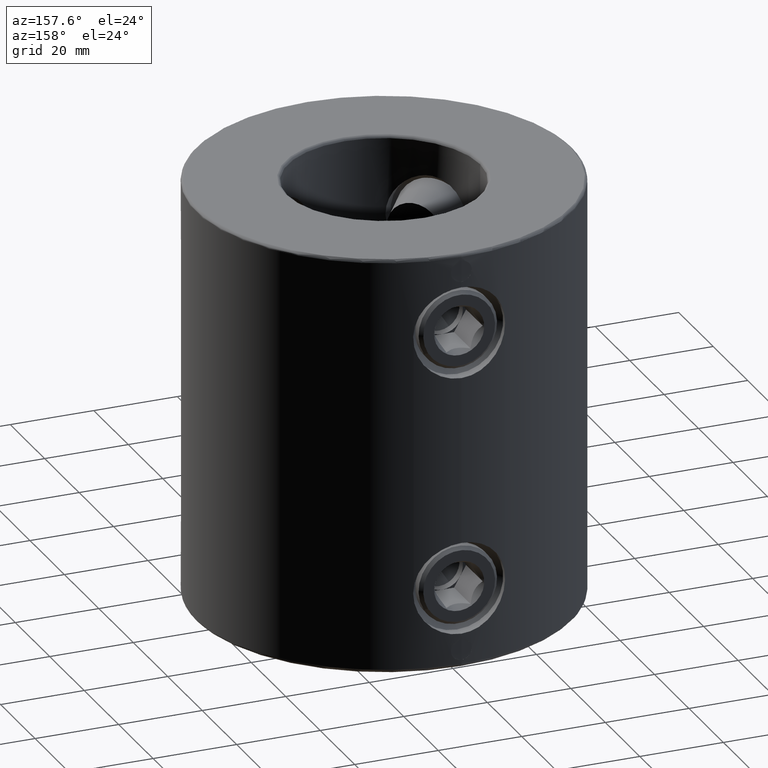
[diagram: clean part render]
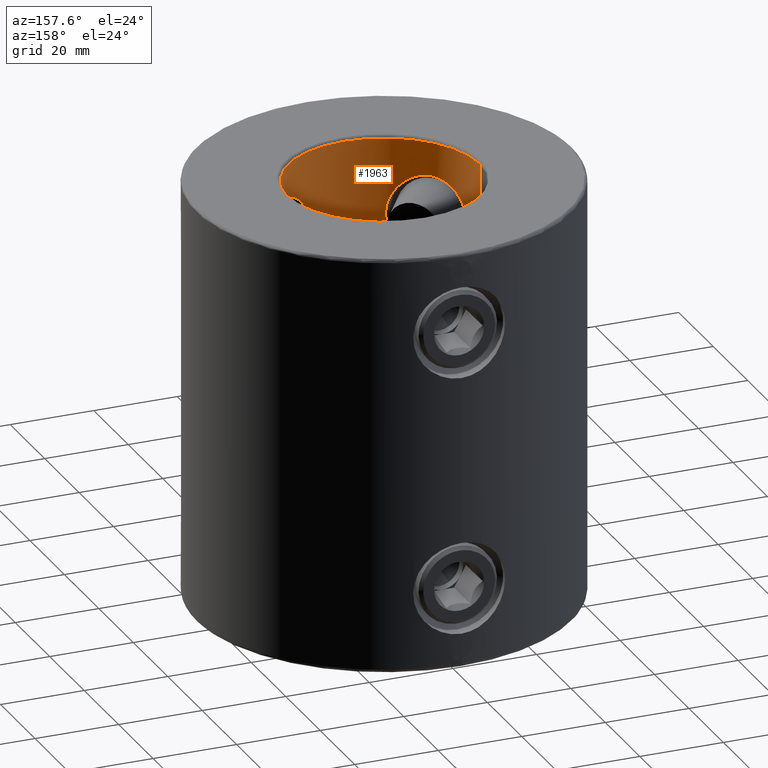
[diagram: same view with one face highlighted and labeled with its STEP entity id]
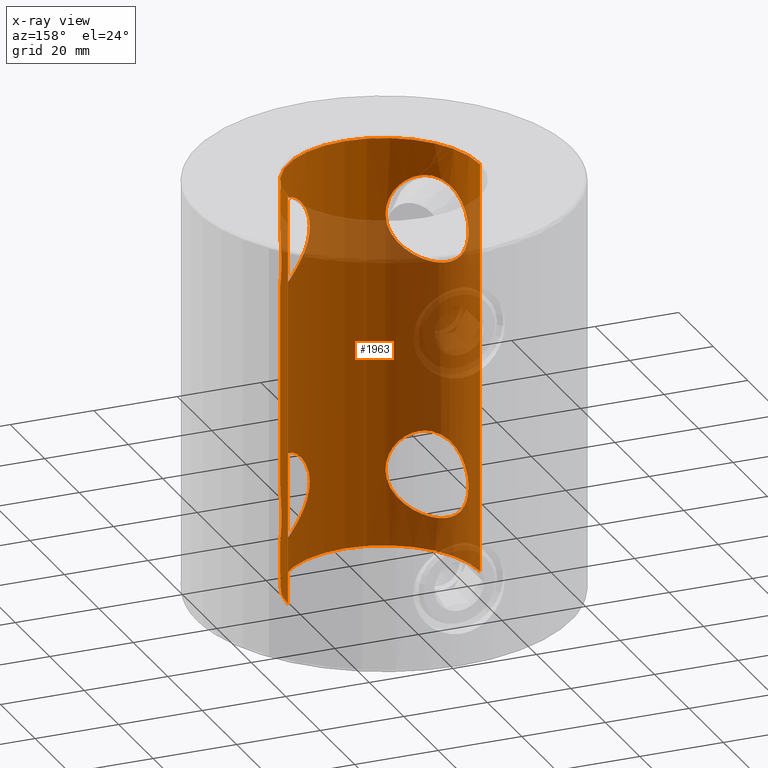
[diagram: x-ray of the same camera — body ghosted, the highlighted face saturated]
A machine part, auxiliary view. The second image highlights one B-rep face of the part: STEP entity #1963.
The next image is the same camera in x-ray: the body ghosted, the highlighted face saturated — about 84% of this face is hidden behind the body in this view.
In plain terms, the highlighted cylindrical surface (partial cylindrical patch) has radius 23 mm, axis along (0, -0, 1).
Its self-contained STEP definition (entity closure, byte-faithful):
#1231=EDGE_CURVE('NONE',#2925,#2093,#3356,.T.);
#1341=VERTEX_POINT('NONE',#3476);
#1373=EDGE_CURVE('NONE',#1475,#3099,#3513,.T.);
#1441=EDGE_CURVE('NONE',#3099,#1475,#3589,.T.);
#1475=VERTEX_POINT('NONE',#3625);
#1479=EDGE_CURVE('NONE',#3117,#2107,#3629,.T.);
#1555=EDGE_CURVE('NONE',#1725,#3155,#3712,.T.);
#1725=VERTEX_POINT('NONE',#3900);
#1803=EDGE_CURVE('NONE',#3155,#1725,#3984,.T.);
#1963=ADVANCED_FACE('NONE',(#4171,#4172,#4173,#4174,#4175),#4176,.F.);
#1967=EDGE_CURVE('NONE',#2091,#2925,#4180,.T.);
#2017=EDGE_CURVE('NONE',#2289,#2347,#4235,.T.);
#2047=EDGE_CURVE('NONE',#2327,#2865,#4269,.T.);
#2091=VERTEX_POINT('NONE',#4319);
#2093=VERTEX_POINT('NONE',#4321);
#2107=VERTEX_POINT('NONE',#4337);
#2289=VERTEX_POINT('NONE',#4538);
#2327=VERTEX_POINT('NONE',#4577);
#2347=VERTEX_POINT('NONE',#4600);
#2739=EDGE_CURVE('NONE',#2093,#1341,#5049,.T.);
#2789=EDGE_CURVE('NONE',#2107,#2091,#5105,.T.);
#2865=VERTEX_POINT('NONE',#5188);
#2905=EDGE_CURVE('NONE',#2347,#2289,#5235,.T.);
#2925=VERTEX_POINT('NONE',#5255);
#3099=VERTEX_POINT('NONE',#5456);
#3117=VERTEX_POINT('NONE',#5477);
#3155=VERTEX_POINT('NONE',#5517);
#3161=EDGE_CURVE('NONE',#3117,#1341,#5523,.T.);
#3163=EDGE_CURVE('NONE',#2865,#2327,#5525,.T.);
#3356=CIRCLE('',#5828,23.0);
#3476=CARTESIAN_POINT('',(-23.0,2.81659461379147E-015,-0.670000000000007));
#3513=B_SPLINE_CURVE_WITH_KNOTS('',3,(#6089,#6090,#6091,#6092,#6093,#6094,#6095,#6096,#6097,#6098,#6099,#6100,#6101,#6102,#6103,#6104,#6105,#6106,#6107,#6108,#6109,#6110,#6111,#6112,#6113,#6114,#6115,#6116,#6117,#6118,#6119,#6120,#6121,#6122,#6123,#6124,#6125,#6126,#6127,#6128,#6129,#6130,#6131,#6132,#6133,#6134,#6135,#6136,#6137,#6138),.UNSPECIFIED.,.F.,.F.,(4,2,2,2,2,2,2,2,2,2,2,2,2,2,2,2,2,2,2,2,2,2,2,2,4),(0.0328872435596327,0.0339137847211093,0.0349403258825859,0.036993408205539,0.0380199493670156,0.0390464905284922,0.0400730316899688,0.0410995728514454,0.0431526551743985,0.0452057374973516,0.0472588198203047,0.0482853609817813,0.0493119021432578,0.0503384433047344,0.0513649844662109,0.053418066789164,0.0544446079506405,0.0554711491121171,0.0575242314350701,0.0595773137580231,0.0606038549194996,0.0616303960809761,0.0636834784039291,0.0647100195654056,0.0657365607268821),.UNSPECIFIED.);
#3589=B_SPLINE_CURVE_WITH_KNOTS('',3,(#6301,#6302,#6303,#6304,#6305,#6306,#6307,#6308,#6309,#6310,#6311,#6312,#6313,#6314,#6315,#6316,#6317,#6318,#6319,#6320,#6321,#6322,#6323,#6324,#6325,#6326,#6327,#6328,#6329,#6330,#6331,#6332,#6333,#6334,#6335,#6336,#6337,#6338,#6339,#6340,#6341,#6342,#6343,#6344,#6345,#6346,#6347,#6348),.UNSPECIFIED.,.F.,.F.,(4,2,2,2,2,2,2,2,2,2,2,2,2,2,2,2,2,2,2,2,2,2,2,4),(0.0,0.00205545272247707,0.00308317908371561,0.00411090544495416,0.00616635816743126,0.00719408452866981,0.00822181088990835,0.0092495372511469,0.0102772636123854,0.0123327163348625,0.013360442696101,0.0143881690573396,0.0164436217798166,0.0174713481410551,0.0184990745022936,0.0195268008635321,0.0205545272247706,0.0226099799472477,0.0246654326697247,0.0267208853922017,0.0277486117534402,0.0287763381146787,0.0308317908371557,0.0328872435596327),.UNSPECIFIED.);
#3625=CARTESIAN_POINT('',(17.6190221917365,-14.7841150227905,-91.3250000000001));
#3629=CIRCLE('',#6466,23.0);
#3712=B_SPLINE_CURVE_WITH_KNOTS('',3,(#6661,#6662,#6663,#6664,#6665,#6666,#6667,#6668,#6669,#6670,#6671,#6672,#6673,#6674,#6675,#6676,#6677,#6678,#6679,#6680,#6681,#6682,#6683,#6684,#6685,#6686,#6687,#6688,#6689,#6690,#6691,#6692,#6693,#6694,#6695,#6696,#6697,#6698,#6699,#6700,#6701,#6702,#6703,#6704,#6705,#6706,#6707,#6708),.UNSPECIFIED.,.F.,.F.,(4,2,2,2,2,2,2,2,2,2,2,2,2,2,2,2,2,2,2,2,2,2,2,4),(0.0,0.00205545272247705,0.00308317908371557,0.00411090544495409,0.00616635816743114,0.00719408452866966,0.00822181088990818,0.00924953725114671,0.0102772636123852,0.0123327163348623,0.0133604426961008,0.0143881690573393,0.0164436217798164,0.0174713481410549,0.0184990745022934,0.019526800863532,0.0205545272247705,0.0226099799472475,0.0246654326697246,0.0267208853922016,0.0277486117534401,0.0287763381146787,0.0308317908371557,0.0328872435596327),.UNSPECIFIED.);
#3900=CARTESIAN_POINT('',(17.6190221917364,-14.7841150227905,-29.425));
#3984=B_SPLINE_CURVE_WITH_KNOTS('',3,(#7273,#7274,#7275,#7276,#7277,#7278,#7279,#7280,#7281,#7282,#7283,#7284,#7285,#7286,#7287,#7288,#7289,#7290,#7291,#7292,#7293,#7294,#7295,#7296,#7297,#7298,#7299,#7300,#7301,#7302,#7303,#7304,#7305,#7306,#7307,#7308,#7309,#7310,#7311,#7312,#7313,#7314,#7315,#7316,#7317,#7318,#7319,#7320,#7321),.UNSPECIFIED.,.F.,.F.,(4,2,2,2,2,2,2,2,2,2,2,2,1,2,2,2,2,2,2,2,2,2,2,2,4),(0.0328872435596327,0.0339137847211093,0.0349403258825858,0.0369934082055389,0.0380199493670155,0.039046490528492,0.0400730316899686,0.0410995728514451,0.0431526551743982,0.0452057374973513,0.0472588198203044,0.0482853609817809,0.0493119021432575,0.050338443304734,0.0513649844662106,0.0534180667891637,0.0544446079506402,0.0554711491121167,0.0575242314350698,0.0595773137580229,0.0606038549194995,0.061630396080976,0.0636834784039291,0.0647100195654056,0.0657365607268822),.UNSPECIFIED.);
#4171=FACE_OUTER_BOUND('',#7688,.T.);
#4172=FACE_BOUND('',#7689,.T.);
#4173=FACE_BOUND('',#7690,.T.);
#4174=FACE_BOUND('',#7691,.T.);
#4175=FACE_BOUND('',#7692,.T.);
#4176=CYLINDRICAL_SURFACE('',#7693,23.0);
#4180=LINE('',#7698,#7699);
#4235=B_SPLINE_CURVE_WITH_KNOTS('',3,(#7875,#7876,#7877,#7878,#7879,#7880,#7881,#7882,#7883,#7884,#7885,#7886,#7887,#7888,#7889,#7890,#7891,#7892,#7893,#7894,#7895,#7896,#7897,#7898,#7899,#7900,#7901,#7902,#7903,#7904,#7905,#7906,#7907,#7908,#7909,#7910,#7911,#7912,#7913,#7914,#7915,#7916,#7917,#7918,#7919,#7920,#7921,#7922,#7923,#7924),.UNSPECIFIED.,.F.,.F.,(4,2,2,2,2,2,2,2,2,2,2,2,2,2,2,2,2,2,2,2,2,2,2,2,4),(0.0328872435596327,0.0339137847211093,0.0349403258825858,0.0369934082055389,0.0380199493670155,0.039046490528492,0.0400730316899685,0.0410995728514451,0.0431526551743982,0.0452057374973513,0.0472588198203044,0.0482853609817809,0.0493119021432574,0.050338443304734,0.0513649844662105,0.0534180667891636,0.0544446079506402,0.0554711491121167,0.0575242314350698,0.0595773137580229,0.0606038549194995,0.061630396080976,0.0636834784039291,0.0647100195654056,0.0657365607268822),.UNSPECIFIED.);
#4269=B_SPLINE_CURVE_WITH_KNOTS('',3,(#7967,#7968,#7969,#7970,#7971,#7972,#7973,#7974,#7975,#7976,#7977,#7978,#7979,#7980,#7981,#7982,#7983,#7984,#7985,#7986,#7987,#7988,#7989,#7990,#7991,#7992,#7993,#7994,#7995,#7996,#7997,#7998,#7999,#8000,#8001,#8002,#8003,#8004,#8005,#8006,#8007,#8008,#8009,#8010,#8011,#8012,#8013,#8014,#8015),.UNSPECIFIED.,.F.,.F.,(4,2,2,2,2,2,2,2,2,2,2,2,1,2,2,2,2,2,2,2,2,2,2,2,4),(0.0328872435596327,0.0339137847211093,0.0349403258825858,0.036993408205539,0.0380199493670155,0.0390464905284921,0.0400730316899686,0.0410995728514452,0.0431526551743983,0.0452057374973514,0.0472588198203045,0.048285360981781,0.0493119021432576,0.0503384433047341,0.0513649844662106,0.0534180667891637,0.0544446079506402,0.0554711491121168,0.0575242314350699,0.0595773137580229,0.0606038549194994,0.061630396080976,0.0636834784039291,0.0647100195654056,0.0657365607268822),.UNSPECIFIED.);
#4319=CARTESIAN_POINT('',(23.0,0.0,-99.3300000000002));
#4321=CARTESIAN_POINT('',(0.0,-23.0,-0.670000000000007));
#4337=CARTESIAN_POINT('',(2.33929385194388E-015,-23.0,-99.33));
#4538=CARTESIAN_POINT('',(-17.6190221917364,-14.7841150227905,-8.675));
#4577=CARTESIAN_POINT('',(-17.6190221917364,-14.7841150227905,-91.3249999999999));
#4600=CARTESIAN_POINT('',(-17.6190221917364,-14.7841150227905,-29.425));
#5049=CIRCLE('',#9639,23.0);
#5105=CIRCLE('',#9709,23.0);
#5188=CARTESIAN_POINT('',(-17.6190221917362,-14.7841150227905,-70.5749999999999));
#5235=B_SPLINE_CURVE_WITH_KNOTS('',3,(#9948,#9949,#9950,#9951,#9952,#9953,#9954,#9955,#9956,#9957,#9958,#9959,#9960,#9961,#9962,#9963,#9964,#9965,#9966,#9967,#9968,#9969,#9970,#9971,#9972,#9973,#9974,#9975,#9976,#9977,#9978,#9979,#9980,#9981,#9982,#9983,#9984,#9985,#9986,#9987,#9988,#9989,#9990,#9991,#9992,#9993,#9994,#9995),.UNSPECIFIED.,.F.,.F.,(4,2,2,2,2,2,2,2,2,2,2,2,2,2,2,2,2,2,2,2,2,2,2,4),(0.0,0.00205545272247706,0.0030831790837156,0.00411090544495412,0.00616635816743118,0.0071940845286697,0.00822181088990822,0.00924953725114675,0.0102772636123853,0.0123327163348623,0.0133604426961008,0.0143881690573393,0.0164436217798164,0.0174713481410549,0.0184990745022934,0.0195268008635319,0.0205545272247704,0.0226099799472475,0.0246654326697245,0.0267208853922016,0.0277486117534401,0.0287763381146786,0.0308317908371557,0.0328872435596327),.UNSPECIFIED.);
#5255=CARTESIAN_POINT('',(23.0,0.0,-0.670000000000007));
#5456=CARTESIAN_POINT('',(17.6190221917366,-14.7841150227905,-70.5750000000001));
#5477=CARTESIAN_POINT('',(-23.0,2.81659461379147E-015,-99.3299999999998));
#5517=CARTESIAN_POINT('',(17.6190221917364,-14.7841150227905,-8.675));
#5523=LINE('',#10530,#10531);
#5525=B_SPLINE_CURVE_WITH_KNOTS('',3,(#10534,#10535,#10536,#10537,#10538,#10539,#10540,#10541,#10542,#10543,#10544,#10545,#10546,#10547,#10548,#10549,#10550,#10551,#10552,#10553,#10554,#10555,#10556,#10557,#10558,#10559,#10560,#10561,#10562,#10563,#10564,#10565,#10566,#10567,#10568,#10569,#10570,#10571,#10572,#10573,#10574,#10575,#10576,#10577,#10578,#10579,#10580,#10581),.UNSPECIFIED.,.F.,.F.,(4,2,2,2,2,2,2,2,2,2,2,2,2,2,2,2,2,2,2,2,2,2,2,4),(0.0,0.00205545272247706,0.00308317908371559,0.00411090544495412,0.00616635816743119,0.00719408452866971,0.00822181088990822,0.00924953725114675,0.0102772636123853,0.0123327163348623,0.0133604426961008,0.0143881690573393,0.0164436217798164,0.0174713481410549,0.0184990745022934,0.0195268008635319,0.0205545272247705,0.0226099799472475,0.0246654326697246,0.0267208853922016,0.0277486117534401,0.0287763381146786,0.0308317908371557,0.0328872435596327),.UNSPECIFIED.);
#5828=AXIS2_PLACEMENT_3D('',#10844,#10845,#10846);
#6089=CARTESIAN_POINT('',(17.6190221917365,-14.7841150227905,-91.3250000000001));
#6090=CARTESIAN_POINT('',(17.8390846596531,-14.5218547860557,-91.3250000000001));
#6091=CARTESIAN_POINT('',(18.0538235713508,-14.2540536357686,-91.3080980925852));
#6092=CARTESIAN_POINT('',(18.4724757033478,-13.7071598803711,-91.2394810227541));
#6093=CARTESIAN_POINT('',(18.6754690720395,-13.4290971956094,-91.187664264733));
#6094=CARTESIAN_POINT('',(19.254179859158,-12.5988786862363,-90.9841768458101));
#6095=CARTESIAN_POINT('',(19.6047664468973,-12.0441539210374,-90.78428489932));
#6096=CARTESIAN_POINT('',(20.0837312675096,-11.2136464253256,-90.3892578039674));
#6097=CARTESIAN_POINT('',(20.2354616299493,-10.9370471766201,-90.2413357405828));
#6098=CARTESIAN_POINT('',(20.51819160297,-10.3969573272459,-89.9200437105336));
#6099=CARTESIAN_POINT('',(20.6501022516113,-10.1319281925016,-89.7460002319745));
#6100=CARTESIAN_POINT('',(20.8969605463822,-9.61247792314528,-89.3716226701748));
#6101=CARTESIAN_POINT('',(21.0119040193746,-9.35805501681577,-89.1712882550399));
#6102=CARTESIAN_POINT('',(21.2263701499759,-8.86084163459504,-88.7439337406022));
#6103=CARTESIAN_POINT('',(21.3262420075459,-8.61707620788887,-88.5157973142441));
#6104=CARTESIAN_POINT('',(21.5998560713525,-7.91811971649589,-87.8029261667045));
#6105=CARTESIAN_POINT('',(21.749468442298,-7.49151099544941,-87.2878070119053));
#6106=CARTESIAN_POINT('',(21.998352202834,-6.72566835916889,-86.1752618563761));
#6107=CARTESIAN_POINT('',(22.0979199802771,-6.38465547807995,-85.5714893661763));
#6108=CARTESIAN_POINT('',(22.2499323662517,-5.83287259639121,-84.3254980523995));
#6109=CARTESIAN_POINT('',(22.3038553131051,-5.61791766027203,-83.679098383266));
#6110=CARTESIAN_POINT('',(22.3579184990639,-5.39714929899132,-82.6713943651014));
#6111=CARTESIAN_POINT('',(22.3714224054689,-5.3404997513703,-82.3268499812567));
#6112=CARTESIAN_POINT('',(22.3891509886799,-5.26568096682621,-81.6407053825209));
#6113=CARTESIAN_POINT('',(22.3934972362445,-5.24702597440465,-81.2980444185802));
#6114=CARTESIAN_POINT('',(22.3935948342042,-5.2466094239298,-80.6135301995425));
#6115=CARTESIAN_POINT('',(22.3893454999163,-5.26484876011015,-80.2716769664058));
#6116=CARTESIAN_POINT('',(22.371946667873,-5.3382981062603,-79.5887813369612));
#6117=CARTESIAN_POINT('',(22.3587056848252,-5.39388708235766,-79.2460837609756));
#6118=CARTESIAN_POINT('',(22.3046862000139,-5.6146170439608,-78.2309605111127));
#6119=CARTESIAN_POINT('',(22.2506161126144,-5.83030509946328,-77.5809923054868));
#6120=CARTESIAN_POINT('',(22.1363046339048,-6.24536715421224,-76.6426971731394));
#6121=CARTESIAN_POINT('',(22.092416639234,-6.39967679533796,-76.3350547852628));
#6122=CARTESIAN_POINT('',(21.9922924342843,-6.73571150890647,-75.736736339388));
#6123=CARTESIAN_POINT('',(21.9364763345434,-6.91603779877242,-75.4482780223723));
#6124=CARTESIAN_POINT('',(21.7497376554496,-7.49074116220969,-74.6131301389497));
#6125=CARTESIAN_POINT('',(21.5997836361724,-7.91849695217544,-74.0963419650958));
#6126=CARTESIAN_POINT('',(21.2327673849797,-8.85566690240854,-73.1412115315797));
#6127=CARTESIAN_POINT('',(21.0200320189834,-9.35348303535697,-72.7150701351328));
#6128=CARTESIAN_POINT('',(20.6505289484208,-10.1310415009214,-72.1546236750214));
#6129=CARTESIAN_POINT('',(20.5188051446191,-10.3957436075702,-71.9807307518872));
#6130=CARTESIAN_POINT('',(20.236198533769,-10.9356809856116,-71.6594248003636));
#6131=CARTESIAN_POINT('',(20.0843014682886,-11.2126190926908,-71.5112776935718));
#6132=CARTESIAN_POINT('',(19.6057042753217,-12.0426047604369,-71.116358553392));
#6133=CARTESIAN_POINT('',(19.255988968134,-12.5959484898592,-70.9169582373764));
#6134=CARTESIAN_POINT('',(18.6801611050324,-13.4225310007116,-70.713739695346));
#6135=CARTESIAN_POINT('',(18.4796508078274,-13.6975070536753,-70.662098372691));
#6136=CARTESIAN_POINT('',(18.0602017896469,-14.2459925867577,-70.5925567239606));
#6137=CARTESIAN_POINT('',(17.8423397159543,-14.5179755610149,-70.5750000000002));
#6138=CARTESIAN_POINT('',(17.6190221917366,-14.7841150227905,-70.5750000000001));
#6301=CARTESIAN_POINT('',(17.6190221917366,-14.7841150227905,-70.5750000000001));
#6302=CARTESIAN_POINT('',(17.1718714779068,-15.3170084924283,-70.5750000000001));
#6303=CARTESIAN_POINT('',(16.7092024820473,-15.8194396233161,-70.6442414099532));
#6304=CARTESIAN_POINT('',(15.9946784021898,-16.5312822311512,-70.8464896228193));
#6305=CARTESIAN_POINT('',(15.7530848395712,-16.7615680199012,-70.9304330413766));
#6306=CARTESIAN_POINT('',(15.26357905027,-17.2085153056463,-71.1319864698544));
#6307=CARTESIAN_POINT('',(15.0169244826743,-17.4239270552966,-71.2492571658993));
#6308=CARTESIAN_POINT('',(14.2852594753062,-18.0370835089743,-71.6429765411014));
#6309=CARTESIAN_POINT('',(13.803373875391,-18.4065838472822,-71.9628545033483));
#6310=CARTESIAN_POINT('',(13.0954180977094,-18.9101530840949,-72.5280851460334));
#6311=CARTESIAN_POINT('',(12.8615192919735,-19.0697284287569,-72.7314368139845));
#6312=CARTESIAN_POINT('',(12.4093132336859,-19.3670381295801,-73.1588950442558));
#6313=CARTESIAN_POINT('',(12.189814520171,-19.5056480575959,-73.383869158249));
#6314=CARTESIAN_POINT('',(11.7650705697851,-19.7647413003799,-73.856170290935));
#6315=CARTESIAN_POINT('',(11.5598225073824,-19.8852209489351,-74.1034967942166));
#6316=CARTESIAN_POINT('',(11.1651705534719,-20.1094623275223,-74.6211463171408));
#6317=CARTESIAN_POINT('',(10.9749120205523,-20.2136695435397,-74.8928359476194));
#6318=CARTESIAN_POINT('',(10.4376825340161,-20.4992513135539,-75.734394932594));
#6319=CARTESIAN_POINT('',(10.1265437263343,-20.6527224602635,-76.3253159959918));
#6320=CARTESIAN_POINT('',(9.73894895680558,-20.8368263282162,-77.2583612728141));
#6321=CARTESIAN_POINT('',(9.62301897882684,-20.8904262295121,-77.5772105741574));
#6322=CARTESIAN_POINT('',(9.42027018240747,-20.9826335813213,-78.2316342711573));
#6323=CARTESIAN_POINT('',(9.33365247953642,-21.0211466715962,-78.5676243097102));
#6324=CARTESIAN_POINT('',(9.12678251246179,-21.1121894875988,-79.5751045051514));
#6325=CARTESIAN_POINT('',(9.05623968562776,-21.1420084924023,-80.2546169487952));
#6326=CARTESIAN_POINT('',(9.05544001913648,-21.1423510079629,-81.2859762208465));
#6327=CARTESIAN_POINT('',(9.07301854283389,-21.134848172977,-81.6339942408253));
#6328=CARTESIAN_POINT('',(9.14349707531726,-21.1044529426152,-82.3225951016274));
#6329=CARTESIAN_POINT('',(9.1960072072687,-21.0817243498482,-82.6621175345331));
#6330=CARTESIAN_POINT('',(9.33360544969699,-21.0211669378393,-83.3320565780771));
#6331=CARTESIAN_POINT('',(9.41869610493031,-20.9833364844272,-83.6624724301172));
#6332=CARTESIAN_POINT('',(9.62017556364856,-20.8917320598438,-84.3144065329648));
#6333=CARTESIAN_POINT('',(9.73719037761134,-20.8376606478842,-84.6373786478276));
#6334=CARTESIAN_POINT('',(10.1296766860923,-20.6512363102101,-85.5822792536827));
#6335=CARTESIAN_POINT('',(10.4428713502515,-20.4965706519612,-86.1744002320949));
#6336=CARTESIAN_POINT('',(11.1557291751825,-20.1174719360739,-87.2897369123284));
#6337=CARTESIAN_POINT('',(11.5587660839252,-19.890794829752,-87.8152677297732));
#6338=CARTESIAN_POINT('',(12.4102191365712,-19.3709899934018,-88.7603576346885));
#6339=CARTESIAN_POINT('',(12.8614150324505,-19.0766889566949,-89.1853057426047));
#6340=CARTESIAN_POINT('',(13.5699390069841,-18.5725811317003,-89.7506614272928));
#6341=CARTESIAN_POINT('',(13.8118509261491,-18.3936328829376,-89.9270492022495));
#6342=CARTESIAN_POINT('',(14.2945638797358,-18.0210543566851,-90.2474391042581));
#6343=CARTESIAN_POINT('',(14.5366816806291,-17.8265239722025,-90.392565424055));
#6344=CARTESIAN_POINT('',(15.2638485760336,-17.2167131447818,-90.7831106470628));
#6345=CARTESIAN_POINT('',(15.7507671273474,-16.7743221494956,-90.9845365198744));
#6346=CARTESIAN_POINT('',(16.7164304111192,-15.812194755479,-91.2577384048854));
#6347=CARTESIAN_POINT('',(17.1783891068014,-15.3092410847778,-91.3250000000001));
#6348=CARTESIAN_POINT('',(17.6190221917365,-14.7841150227905,-91.3250000000001));
#6466=AXIS2_PLACEMENT_3D('',#11170,#11171,#11172);
#6661=CARTESIAN_POINT('',(17.6190221917364,-14.7841150227905,-29.425));
#6662=CARTESIAN_POINT('',(18.0661729055663,-14.2512215531527,-29.425));
#6663=CARTESIAN_POINT('',(18.4806293506253,-13.7083352886701,-29.355758590047));
#6664=CARTESIAN_POINT('',(19.0575816653794,-12.8810562634763,-29.1535103771808));
#6665=CARTESIAN_POINT('',(19.2424166136642,-12.6031443423726,-29.0695669586235));
#6666=CARTESIAN_POINT('',(19.5975719775841,-12.0434636642416,-28.8680135301457));
#6667=CARTESIAN_POINT('',(19.7668800225534,-11.7631504759827,-28.7507428341009));
#6668=CARTESIAN_POINT('',(20.2436689567525,-10.936127603313,-28.3570234588986));
#6669=CARTESIAN_POINT('',(20.5238771983896,-10.3973998680572,-28.0371454966517));
#6670=CARTESIAN_POINT('',(20.896860856318,-9.61275564910488,-27.4719148539667));
#6671=CARTESIAN_POINT('',(21.0133957915562,-9.35470032399471,-27.2685631860156));
#6672=CARTESIAN_POINT('',(21.2276639320211,-8.85773700408334,-26.8411049557443));
#6673=CARTESIAN_POINT('',(21.3260525121734,-8.61750360783114,-26.616130841751));
#6674=CARTESIAN_POINT('',(21.5074535334606,-8.15422140299088,-26.1438297090651));
#6675=CARTESIAN_POINT('',(21.5904618734321,-7.93117044842837,-25.8965032057834));
#6676=CARTESIAN_POINT('',(21.7427659290016,-7.50357503772669,-25.3788536828593));
#6677=CARTESIAN_POINT('',(21.8123519557284,-7.2981115662696,-25.1071640523806));
#6678=CARTESIAN_POINT('',(22.0003061756313,-6.71945304884414,-24.2656050674061));
#6679=CARTESIAN_POINT('',(22.0974170638192,-6.38639115382554,-23.6746840040082));
#6680=CARTESIAN_POINT('',(22.2114188549367,-5.97271551859528,-22.741638727186));
#6681=CARTESIAN_POINT('',(22.2440734238806,-5.84923925229214,-22.4227894258427));
#6682=CARTESIAN_POINT('',(22.2996729798046,-5.63355902705528,-21.7683657288428));
#6683=CARTESIAN_POINT('',(22.3225599634426,-5.54156951377721,-21.4323756902898));
#6684=CARTESIAN_POINT('',(22.3762970417015,-5.32203294724822,-20.4248954948487));
#6685=CARTESIAN_POINT('',(22.3934133954919,-5.24738380861871,-19.7453830512049));
#6686=CARTESIAN_POINT('',(22.3936118468425,-5.24653681365535,-18.7140237791535));
#6687=CARTESIAN_POINT('',(22.3892754753849,-5.26515113370172,-18.3660057591747));
#6688=CARTESIAN_POINT('',(22.3715804856004,-5.33983701527437,-17.6774048983726));
#6689=CARTESIAN_POINT('',(22.3583154799508,-5.39549617904676,-17.3378824654669));
#6690=CARTESIAN_POINT('',(22.3225717551499,-5.54151967923058,-16.667943421923));
#6691=CARTESIAN_POINT('',(22.3000918685476,-5.63188680550855,-16.3375275698828));
#6692=CARTESIAN_POINT('',(22.2448656618513,-5.84621227992214,-15.6855934670353));
#6693=CARTESIAN_POINT('',(22.2119351253418,-5.97083877808063,-15.3626213521724));
#6694=CARTESIAN_POINT('',(22.0964975244771,-6.38973458413374,-14.4177207463174));
#6695=CARTESIAN_POINT('',(21.9985672677951,-6.72502852730234,-13.8255997679052));
#6696=CARTESIAN_POINT('',(21.7490143754673,-7.49288624125948,-12.7102630876717));
#6697=CARTESIAN_POINT('',(21.5957676284668,-7.92916218017097,-12.1847322702269));
#6698=CARTESIAN_POINT('',(21.2317130665368,-8.85794291031731,-11.2396423653116));
#6699=CARTESIAN_POINT('',(21.0202324689585,-9.35338896541619,-10.8146942573954));
#6700=CARTESIAN_POINT('',(20.6468170715608,-10.1386862738899,-10.2493385727072));
#6701=CARTESIAN_POINT('',(20.5125950127102,-10.407997044724,-10.0729507977506));
#6702=CARTESIAN_POINT('',(20.2294990161775,-10.9480740860172,-9.75256089574197));
#6703=CARTESIAN_POINT('',(20.0799673002484,-11.2202934202454,-9.60743457594513));
#6704=CARTESIAN_POINT('',(19.6056920757803,-12.0423055554768,-9.2168893529373));
#6705=CARTESIAN_POINT('',(19.2545745128676,-12.5986471100437,-9.01546348012572));
#6706=CARTESIAN_POINT('',(18.4747496653214,-13.7167114673558,-8.74226159511471));
#6707=CARTESIAN_POINT('',(18.0596552766715,-14.2589889608032,-8.675));
#6708=CARTESIAN_POINT('',(17.6190221917364,-14.7841150227905,-8.675));
#7273=CARTESIAN_POINT('',(17.6190221917364,-14.7841150227905,-8.675));
#7274=CARTESIAN_POINT('',(17.3989597238198,-15.0463752595253,-8.675));
#7275=CARTESIAN_POINT('',(17.172516095442,-15.3043549863631,-8.69190190741489));
#7276=CARTESIAN_POINT('',(16.7066290648502,-15.811613955771,-8.76051897724605));
#7277=CARTESIAN_POINT('',(16.4680402056252,-16.0598084775547,-8.81233573526712));
#7278=CARTESIAN_POINT('',(15.7509266544798,-16.7738932786787,-9.01582315419002));
#7279=CARTESIAN_POINT('',(15.2655081269994,-17.21548061297,-9.21571510068018));
#7280=CARTESIAN_POINT('',(14.5307892745535,-17.8313849948981,-9.61074219603279));
#7281=CARTESIAN_POINT('',(14.2847398908853,-18.0288411876779,-9.75866425941736));
#7282=CARTESIAN_POINT('',(13.8019507644854,-18.4010614752378,-10.0799562894665));
#7283=CARTESIAN_POINT('',(13.5638540615664,-18.5769899310016,-10.2539997680257));
#7284=CARTESIAN_POINT('',(13.095161902029,-18.9102994862497,-10.6283773298254));
#7285=CARTESIAN_POINT('',(12.8645639759516,-19.0676767836516,-10.8287117449603));
#7286=CARTESIAN_POINT('',(12.4121460349894,-19.3652248895606,-11.2560662593979));
#7287=CARTESIAN_POINT('',(12.1894265189201,-19.5059088913289,-11.484202685756));
#7288=CARTESIAN_POINT('',(11.5486013307421,-19.8967386636976,-12.1970738332957));
#7289=CARTESIAN_POINT('',(11.154453670324,-20.1181579135378,-12.7121929880948));
#7290=CARTESIAN_POINT('',(10.4434641159956,-20.4962477486823,-13.8247381436241));
#7291=CARTESIAN_POINT('',(10.1249217499296,-20.6535191332205,-14.4285106338239));
#7292=CARTESIAN_POINT('',(9.60791836387035,-20.8990382013553,-15.6745019476007));
#7293=CARTESIAN_POINT('',(9.40559269768746,-20.9894684704193,-16.3209016167343));
#7294=CARTESIAN_POINT('',(9.19756627759902,-21.081046338727,-17.3286056348988));
#7295=CARTESIAN_POINT('',(9.14412229263582,-21.1041821811606,-17.6731500187435));
#7296=CARTESIAN_POINT('',(9.07351870971305,-21.134633572948,-18.3592946174793));
#7297=CARTESIAN_POINT('',(9.03828422155908,-21.1496736499842,-19.0446165673209));
#7298=CARTESIAN_POINT('',(9.07273292260872,-21.1349696403014,-19.7283230335944));
#7299=CARTESIAN_POINT('',(9.1420451326732,-21.105080790502,-20.4112186630389));
#7300=CARTESIAN_POINT('',(9.19449031473912,-21.0823880433414,-20.7539162390246));
#7301=CARTESIAN_POINT('',(9.40248650715198,-20.9908598802965,-21.7690394888874));
#7302=CARTESIAN_POINT('',(9.60550860429976,-20.900157401237,-22.4190076945133));
#7303=CARTESIAN_POINT('',(9.99441495383336,-20.7155078013196,-23.3573028268607));
#7304=CARTESIAN_POINT('',(10.1387592144825,-20.6454909759258,-23.6649452147374));
#7305=CARTESIAN_POINT('',(10.4523024199561,-20.488536066983,-24.2632636606122));
#7306=CARTESIAN_POINT('',(10.6201967842835,-20.4022546075947,-24.5517219776278));
#7307=CARTESIAN_POINT('',(11.1537422809542,-20.1185567168759,-25.3868698610504));
#7308=CARTESIAN_POINT('',(11.548960257127,-19.8966018226823,-25.9036580349044));
#7309=CARTESIAN_POINT('',(12.4081607868129,-19.3724235190041,-26.8587884684205));
#7310=CARTESIAN_POINT('',(12.8614728654845,-19.0764752169313,-27.2849298648673));
#7311=CARTESIAN_POINT('',(13.5630549359471,-18.5775641177047,-27.8453763249788));
#7312=CARTESIAN_POINT('',(13.800862024328,-18.4018764560204,-28.019269248113));
#7313=CARTESIAN_POINT('',(14.2835224173935,-18.0298041328516,-28.3405751996366));
#7314=CARTESIAN_POINT('',(14.529876563736,-17.8321249274858,-28.4887223064284));
#7315=CARTESIAN_POINT('',(15.2641453538261,-17.2166732025884,-28.8836414466081));
#7316=CARTESIAN_POINT('',(15.7483551228465,-16.7761837264853,-29.0830417626238));
#7317=CARTESIAN_POINT('',(16.4623885289608,-16.0655694358015,-29.2862603046541));
#7318=CARTESIAN_POINT('',(16.6983688300991,-15.8203562500561,-29.3379016273091));
#7319=CARTESIAN_POINT('',(17.1656850778625,-15.3120360916621,-29.4074432760395));
#7320=CARTESIAN_POINT('',(17.3957046675188,-15.0502544845661,-29.425));
#7321=CARTESIAN_POINT('',(17.6190221917364,-14.7841150227905,-29.425));
#7688=EDGE_LOOP('',(#11833,#11834,#11835,#11836,#11837,#11838));
#7689=EDGE_LOOP('',(#11839,#11840));
#7690=EDGE_LOOP('',(#11841,#11842));
#7691=EDGE_LOOP('',(#11843,#11844));
#7692=EDGE_LOOP('',(#11845,#11846));
#7693=AXIS2_PLACEMENT_3D('',#11847,#11848,#11849);
#7698=CARTESIAN_POINT('',(23.0,0.0,0.0499999999999932));
#7699=VECTOR('',#11850,1000.0);
#7875=CARTESIAN_POINT('',(-17.6190221917364,-14.7841150227905,-8.675));
#7876=CARTESIAN_POINT('',(-17.8390846596531,-14.5218547860557,-8.675));
#7877=CARTESIAN_POINT('',(-18.0538235713508,-14.2540536357686,-8.69190190741489));
#7878=CARTESIAN_POINT('',(-18.4724757033478,-13.7071598803711,-8.76051897724605));
#7879=CARTESIAN_POINT('',(-18.6754690720395,-13.4290971956094,-8.81233573526712));
#7880=CARTESIAN_POINT('',(-19.2541798591579,-12.5988786862364,-9.01582315419002));
#7881=CARTESIAN_POINT('',(-19.6047664468973,-12.0441539210374,-9.21571510068019));
#7882=CARTESIAN_POINT('',(-20.0837312675095,-11.2136464253256,-9.6107421960328));
#7883=CARTESIAN_POINT('',(-20.2354616299492,-10.9370471766201,-9.75866425941736));
#7884=CARTESIAN_POINT('',(-20.51819160297,-10.3969573272459,-10.0799562894665));
#7885=CARTESIAN_POINT('',(-20.6501022516112,-10.1319281925016,-10.2539997680257));
#7886=CARTESIAN_POINT('',(-20.8969605463822,-9.61247792314527,-10.6283773298254));
#7887=CARTESIAN_POINT('',(-21.0119040193745,-9.35805501681578,-10.8287117449603));
#7888=CARTESIAN_POINT('',(-21.2263701499759,-8.86084163459505,-11.2560662593979));
#7889=CARTESIAN_POINT('',(-21.3262420075458,-8.61707620788887,-11.4842026857561));
#7890=CARTESIAN_POINT('',(-21.5998560713524,-7.91811971649589,-12.1970738332957));
#7891=CARTESIAN_POINT('',(-21.7494684422979,-7.49151099544942,-12.7121929880948));
#7892=CARTESIAN_POINT('',(-21.9983522028339,-6.72566835916889,-13.8247381436241));
#7893=CARTESIAN_POINT('',(-22.097919980277,-6.38465547807995,-14.4285106338239));
#7894=CARTESIAN_POINT('',(-22.2499323662516,-5.83287259639121,-15.6745019476007));
#7895=CARTESIAN_POINT('',(-22.303855313105,-5.61791766027203,-16.3209016167342));
#7896=CARTESIAN_POINT('',(-22.3579184990638,-5.39714929899132,-17.3286056348988));
#7897=CARTESIAN_POINT('',(-22.3714224054688,-5.3404997513703,-17.6731500187435));
#7898=CARTESIAN_POINT('',(-22.3891509886798,-5.26568096682621,-18.3592946174793));
#7899=CARTESIAN_POINT('',(-22.3934972362443,-5.24702597440465,-18.7019555814199));
#7900=CARTESIAN_POINT('',(-22.3935948342041,-5.24660942392981,-19.3864698004576));
#7901=CARTESIAN_POINT('',(-22.3893454999162,-5.26484876011016,-19.7283230335944));
#7902=CARTESIAN_POINT('',(-22.3719466678729,-5.3382981062603,-20.4112186630389));
#7903=CARTESIAN_POINT('',(-22.3587056848251,-5.39388708235766,-20.7539162390246));
#7904=CARTESIAN_POINT('',(-22.3046862000137,-5.6146170439608,-21.7690394888874));
#7905=CARTESIAN_POINT('',(-22.2506161126143,-5.83030509946328,-22.4190076945133));
#7906=CARTESIAN_POINT('',(-22.1363046339046,-6.24536715421224,-23.3573028268607));
#7907=CARTESIAN_POINT('',(-22.0924166392339,-6.39967679533795,-23.6649452147374));
#7908=CARTESIAN_POINT('',(-21.9922924342841,-6.73571150890646,-24.2632636606122));
#7909=CARTESIAN_POINT('',(-21.9364763345432,-6.91603779877242,-24.5517219776278));
#7910=CARTESIAN_POINT('',(-21.7497376554494,-7.4907411622097,-25.3868698610504));
#7911=CARTESIAN_POINT('',(-21.5997836361722,-7.91849695217544,-25.9036580349044));
#7912=CARTESIAN_POINT('',(-21.2327673849795,-8.85566690240854,-26.8587884684205));
#7913=CARTESIAN_POINT('',(-21.0200320189832,-9.35348303535697,-27.2849298648673));
#7914=CARTESIAN_POINT('',(-20.6505289484206,-10.1310415009214,-27.8453763249788));
#7915=CARTESIAN_POINT('',(-20.5188051446189,-10.3957436075702,-28.019269248113));
#7916=CARTESIAN_POINT('',(-20.2361985337688,-10.9356809856116,-28.3405751996366));
#7917=CARTESIAN_POINT('',(-20.0843014682884,-11.2126190926908,-28.4887223064283));
#7918=CARTESIAN_POINT('',(-19.6057042753215,-12.0426047604369,-28.8836414466081));
#7919=CARTESIAN_POINT('',(-19.2559889681338,-12.5959484898592,-29.0830417626238));
#7920=CARTESIAN_POINT('',(-18.6801611050322,-13.4225310007116,-29.2862603046541));
#7921=CARTESIAN_POINT('',(-18.4796508078272,-13.6975070536753,-29.3379016273091));
#7922=CARTESIAN_POINT('',(-18.0602017896467,-14.2459925867577,-29.4074432760395));
#7923=CARTESIAN_POINT('',(-17.8423397159541,-14.5179755610149,-29.425));
#7924=CARTESIAN_POINT('',(-17.6190221917364,-14.7841150227905,-29.425));
#7967=CARTESIAN_POINT('',(-17.6190221917364,-14.7841150227905,-91.3249999999999));
#7968=CARTESIAN_POINT('',(-17.3989597238197,-15.0463752595253,-91.3249999999999));
#7969=CARTESIAN_POINT('',(-17.1725160954419,-15.3043549863631,-91.308098092585));
#7970=CARTESIAN_POINT('',(-16.7066290648502,-15.811613955771,-91.2394810227538));
#7971=CARTESIAN_POINT('',(-16.4680402056252,-16.0598084775547,-91.1876642647327));
#7972=CARTESIAN_POINT('',(-15.7509266544797,-16.7738932786787,-90.9841768458099));
#7973=CARTESIAN_POINT('',(-15.2655081269993,-17.21548061297,-90.7842848993197));
#7974=CARTESIAN_POINT('',(-14.5307892745535,-17.8313849948981,-90.3892578039671));
#7975=CARTESIAN_POINT('',(-14.2847398908853,-18.0288411876779,-90.2413357405826));
#7976=CARTESIAN_POINT('',(-13.8019507644853,-18.4010614752378,-89.9200437105334));
#7977=CARTESIAN_POINT('',(-13.5638540615664,-18.5769899310016,-89.7460002319742));
#7978=CARTESIAN_POINT('',(-13.0951619020289,-18.9102994862497,-89.3716226701745));
#7979=CARTESIAN_POINT('',(-12.8645639759515,-19.0676767836516,-89.1712882550396));
#7980=CARTESIAN_POINT('',(-12.4121460349893,-19.3652248895606,-88.743933740602));
#7981=CARTESIAN_POINT('',(-12.18942651892,-19.5059088913289,-88.5157973142439));
#7982=CARTESIAN_POINT('',(-11.548601330742,-19.8967386636976,-87.8029261667042));
#7983=CARTESIAN_POINT('',(-11.1544536703239,-20.1181579135378,-87.2878070119051));
#7984=CARTESIAN_POINT('',(-10.4434641159955,-20.4962477486823,-86.1752618563758));
#7985=CARTESIAN_POINT('',(-10.1249217499295,-20.6535191332205,-85.5714893661761));
#7986=CARTESIAN_POINT('',(-9.60791836387024,-20.8990382013553,-84.3254980523993));
#7987=CARTESIAN_POINT('',(-9.40559269768734,-20.9894684704193,-83.6790983832657));
#7988=CARTESIAN_POINT('',(-9.1975662775989,-21.081046338727,-82.6713943651011));
#7989=CARTESIAN_POINT('',(-9.1441222926357,-21.1041821811606,-82.3268499812565));
#7990=CARTESIAN_POINT('',(-9.07351870971293,-21.134633572948,-81.6407053825207));
#7991=CARTESIAN_POINT('',(-9.03828422155894,-21.1496736499842,-80.955383432679));
#7992=CARTESIAN_POINT('',(-9.07273292260858,-21.1349696403014,-80.2716769664055));
#7993=CARTESIAN_POINT('',(-9.14204513267306,-21.105080790502,-79.588781336961));
#7994=CARTESIAN_POINT('',(-9.19449031473898,-21.0823880433414,-79.2460837609754));
#7995=CARTESIAN_POINT('',(-9.40248650715183,-20.9908598802965,-78.2309605111125));
#7996=CARTESIAN_POINT('',(-9.60550860429961,-20.900157401237,-77.5809923054866));
#7997=CARTESIAN_POINT('',(-9.99441495383319,-20.7155078013196,-76.6426971731392));
#7998=CARTESIAN_POINT('',(-10.1387592144823,-20.6454909759257,-76.3350547852625));
#7999=CARTESIAN_POINT('',(-10.4523024199559,-20.488536066983,-75.7367363393877));
#8000=CARTESIAN_POINT('',(-10.6201967842834,-20.4022546075947,-75.4482780223721));
#8001=CARTESIAN_POINT('',(-11.153742280954,-20.1185567168759,-74.6131301389495));
#8002=CARTESIAN_POINT('',(-11.5489602571268,-19.8966018226823,-74.0963419650955));
#8003=CARTESIAN_POINT('',(-12.4081607868127,-19.3724235190041,-73.1412115315795));
#8004=CARTESIAN_POINT('',(-12.8614728654843,-19.0764752169313,-72.7150701351326));
#8005=CARTESIAN_POINT('',(-13.5630549359469,-18.5775641177047,-72.1546236750212));
#8006=CARTESIAN_POINT('',(-13.8008620243278,-18.4018764560204,-71.9807307518869));
#8007=CARTESIAN_POINT('',(-14.2835224173933,-18.0298041328516,-71.6594248003633));
#8008=CARTESIAN_POINT('',(-14.5298765637357,-17.8321249274858,-71.5112776935716));
#8009=CARTESIAN_POINT('',(-15.2641453538259,-17.2166732025884,-71.1163585533918));
#8010=CARTESIAN_POINT('',(-15.7483551228463,-16.7761837264853,-70.9169582373761));
#8011=CARTESIAN_POINT('',(-16.4623885289606,-16.0655694358015,-70.7137396953458));
#8012=CARTESIAN_POINT('',(-16.6983688300989,-15.8203562500561,-70.6620983726907));
#8013=CARTESIAN_POINT('',(-17.1656850778622,-15.3120360916621,-70.5925567239604));
#8014=CARTESIAN_POINT('',(-17.3957046675186,-15.0502544845661,-70.5749999999999));
#8015=CARTESIAN_POINT('',(-17.6190221917362,-14.7841150227905,-70.5749999999999));
#9639=AXIS2_PLACEMENT_3D('',#12869,#12870,#12871);
#9709=AXIS2_PLACEMENT_3D('',#12945,#12946,#12947);
#9948=CARTESIAN_POINT('',(-17.6190221917364,-14.7841150227905,-29.425));
#9949=CARTESIAN_POINT('',(-17.1718714779066,-15.3170084924283,-29.425));
#9950=CARTESIAN_POINT('',(-16.7092024820471,-15.8194396233161,-29.355758590047));
#9951=CARTESIAN_POINT('',(-15.9946784021896,-16.5312822311512,-29.1535103771808));
#9952=CARTESIAN_POINT('',(-15.753084839571,-16.7615680199012,-29.0695669586235));
#9953=CARTESIAN_POINT('',(-15.2635790502698,-17.2085153056463,-28.8680135301457));
#9954=CARTESIAN_POINT('',(-15.0169244826741,-17.4239270552966,-28.7507428341008));
#9955=CARTESIAN_POINT('',(-14.285259475306,-18.0370835089742,-28.3570234588986));
#9956=CARTESIAN_POINT('',(-13.8033738753908,-18.4065838472822,-28.0371454966517));
#9957=CARTESIAN_POINT('',(-13.0954180977092,-18.9101530840949,-27.4719148539667));
#9958=CARTESIAN_POINT('',(-12.8615192919733,-19.0697284287569,-27.2685631860156));
#9959=CARTESIAN_POINT('',(-12.4093132336857,-19.3670381295801,-26.8411049557443));
#9960=CARTESIAN_POINT('',(-12.1898145201708,-19.5056480575959,-26.616130841751));
#9961=CARTESIAN_POINT('',(-11.7650705697849,-19.7647413003799,-26.1438297090651));
#9962=CARTESIAN_POINT('',(-11.5598225073822,-19.8852209489351,-25.8965032057834));
#9963=CARTESIAN_POINT('',(-11.1651705534717,-20.1094623275223,-25.3788536828593));
#9964=CARTESIAN_POINT('',(-10.9749120205521,-20.2136695435397,-25.1071640523806));
#9965=CARTESIAN_POINT('',(-10.4376825340159,-20.4992513135539,-24.2656050674061));
#9966=CARTESIAN_POINT('',(-10.1265437263341,-20.6527224602634,-23.6746840040082));
#9967=CARTESIAN_POINT('',(-9.73894895680542,-20.8368263282162,-22.741638727186));
#9968=CARTESIAN_POINT('',(-9.62301897882669,-20.8904262295121,-22.4227894258427));
#9969=CARTESIAN_POINT('',(-9.42027018240732,-20.9826335813213,-21.7683657288428));
#9970=CARTESIAN_POINT('',(-9.33365247953627,-21.0211466715962,-21.4323756902898));
#9971=CARTESIAN_POINT('',(-9.12678251246165,-21.1121894875988,-20.4248954948487));
#9972=CARTESIAN_POINT('',(-9.05623968562762,-21.1420084924023,-19.7453830512049));
#9973=CARTESIAN_POINT('',(-9.05544001913635,-21.1423510079629,-18.7140237791535));
#9974=CARTESIAN_POINT('',(-9.07301854283376,-21.134848172977,-18.3660057591747));
#9975=CARTESIAN_POINT('',(-9.14349707531714,-21.1044529426152,-17.6774048983727));
#9976=CARTESIAN_POINT('',(-9.19600720726858,-21.0817243498482,-17.3378824654669));
#9977=CARTESIAN_POINT('',(-9.33360544969687,-21.0211669378393,-16.667943421923));
#9978=CARTESIAN_POINT('',(-9.41869610493019,-20.9833364844272,-16.3375275698828));
#9979=CARTESIAN_POINT('',(-9.62017556364845,-20.8917320598438,-15.6855934670353));
#9980=CARTESIAN_POINT('',(-9.73719037761123,-20.8376606478842,-15.3626213521724));
#9981=CARTESIAN_POINT('',(-10.1296766860922,-20.6512363102101,-14.4177207463174));
#9982=CARTESIAN_POINT('',(-10.4428713502514,-20.4965706519612,-13.8255997679052));
#9983=CARTESIAN_POINT('',(-11.1557291751824,-20.1174719360739,-12.7102630876717));
#9984=CARTESIAN_POINT('',(-11.5587660839251,-19.890794829752,-12.1847322702269));
#9985=CARTESIAN_POINT('',(-12.4102191365711,-19.3709899934018,-11.2396423653116));
#9986=CARTESIAN_POINT('',(-12.8614150324504,-19.0766889566949,-10.8146942573954));
#9987=CARTESIAN_POINT('',(-13.569939006984,-18.5725811317003,-10.2493385727072));
#9988=CARTESIAN_POINT('',(-13.8118509261491,-18.3936328829376,-10.0729507977506));
#9989=CARTESIAN_POINT('',(-14.2945638797358,-18.0210543566851,-9.75256089574198));
#9990=CARTESIAN_POINT('',(-14.5366816806291,-17.8265239722025,-9.60743457594513));
#9991=CARTESIAN_POINT('',(-15.2638485760336,-17.2167131447818,-9.2168893529373));
#9992=CARTESIAN_POINT('',(-15.7507671273474,-16.7743221494956,-9.01546348012572));
#9993=CARTESIAN_POINT('',(-16.7164304111191,-15.812194755479,-8.74226159511471));
#9994=CARTESIAN_POINT('',(-17.1783891068013,-15.3092410847778,-8.67499999999999));
#9995=CARTESIAN_POINT('',(-17.6190221917364,-14.7841150227905,-8.675));
#10530=CARTESIAN_POINT('',(-23.0,2.81659461379147E-015,0.0500000000000001));
#10531=VECTOR('',#13431,1000.0);
#10534=CARTESIAN_POINT('',(-17.6190221917362,-14.7841150227905,-70.5749999999999));
#10535=CARTESIAN_POINT('',(-18.066172905566,-14.2512215531527,-70.5749999999999));
#10536=CARTESIAN_POINT('',(-18.4806293506251,-13.7083352886701,-70.6442414099529));
#10537=CARTESIAN_POINT('',(-19.0575816653792,-12.8810562634763,-70.8464896228191));
#10538=CARTESIAN_POINT('',(-19.242416613664,-12.6031443423726,-70.9304330413764));
#10539=CARTESIAN_POINT('',(-19.5975719775839,-12.0434636642416,-71.1319864698542));
#10540=CARTESIAN_POINT('',(-19.7668800225532,-11.7631504759827,-71.249257165899));
#10541=CARTESIAN_POINT('',(-20.2436689567523,-10.936127603313,-71.6429765411012));
#10542=CARTESIAN_POINT('',(-20.5238771983894,-10.3973998680571,-71.9628545033481));
#10543=CARTESIAN_POINT('',(-20.8968608563178,-9.61275564910487,-72.5280851460332));
#10544=CARTESIAN_POINT('',(-21.013395791556,-9.35470032399471,-72.7314368139843));
#10545=CARTESIAN_POINT('',(-21.2276639320209,-8.85773700408335,-73.1588950442556));
#10546=CARTESIAN_POINT('',(-21.3260525121732,-8.61750360783114,-73.3838691582488));
#10547=CARTESIAN_POINT('',(-21.5074535334604,-8.15422140299089,-73.8561702909348));
#10548=CARTESIAN_POINT('',(-21.5904618734319,-7.93117044842837,-74.1034967942164));
#10549=CARTESIAN_POINT('',(-21.7427659290014,-7.50357503772669,-74.6211463171406));
#10550=CARTESIAN_POINT('',(-21.8123519557282,-7.29811156626961,-74.8928359476192));
#10551=CARTESIAN_POINT('',(-22.0003061756311,-6.71945304884414,-75.7343949325938));
#10552=CARTESIAN_POINT('',(-22.097417063819,-6.38639115382554,-76.3253159959916));
#10553=CARTESIAN_POINT('',(-22.2114188549365,-5.97271551859528,-77.2583612728138));
#10554=CARTESIAN_POINT('',(-22.2440734238804,-5.84923925229214,-77.5772105741571));
#10555=CARTESIAN_POINT('',(-22.2996729798045,-5.63355902705529,-78.2316342711571));
#10556=CARTESIAN_POINT('',(-22.3225599634424,-5.54156951377721,-78.56762430971));
#10557=CARTESIAN_POINT('',(-22.3762970417014,-5.32203294724822,-79.5751045051512));
#10558=CARTESIAN_POINT('',(-22.3934133954917,-5.24738380861871,-80.254616948795));
#10559=CARTESIAN_POINT('',(-22.3936118468424,-5.24653681365535,-81.2859762208464));
#10560=CARTESIAN_POINT('',(-22.3892754753848,-5.26515113370172,-81.6339942408251));
#10561=CARTESIAN_POINT('',(-22.3715804856003,-5.33983701527437,-82.3225951016272));
#10562=CARTESIAN_POINT('',(-22.3583154799507,-5.39549617904676,-82.6621175345329));
#10563=CARTESIAN_POINT('',(-22.3225717551498,-5.54151967923057,-83.3320565780769));
#10564=CARTESIAN_POINT('',(-22.3000918685474,-5.63188680550855,-83.662472430117));
#10565=CARTESIAN_POINT('',(-22.2448656618512,-5.84621227992214,-84.3144065329645));
#10566=CARTESIAN_POINT('',(-22.2119351253417,-5.97083877808064,-84.6373786478274));
#10567=CARTESIAN_POINT('',(-22.096497524477,-6.38973458413375,-85.5822792536825));
#10568=CARTESIAN_POINT('',(-21.998567267795,-6.72502852730234,-86.1744002320946));
#10569=CARTESIAN_POINT('',(-21.7490143754672,-7.49288624125948,-87.2897369123281));
#10570=CARTESIAN_POINT('',(-21.5957676284667,-7.92916218017098,-87.815267729773));
#10571=CARTESIAN_POINT('',(-21.2317130665367,-8.85794291031731,-88.7603576346882));
#10572=CARTESIAN_POINT('',(-21.0202324689584,-9.35338896541618,-89.1853057426044));
#10573=CARTESIAN_POINT('',(-20.6468170715607,-10.1386862738899,-89.7506614272926));
#10574=CARTESIAN_POINT('',(-20.5125950127101,-10.407997044724,-89.9270492022493));
#10575=CARTESIAN_POINT('',(-20.2294990161774,-10.9480740860172,-90.2474391042579));
#10576=CARTESIAN_POINT('',(-20.0799673002483,-11.2202934202454,-90.3925654240547));
#10577=CARTESIAN_POINT('',(-19.6056920757803,-12.0423055554768,-90.7831106470626));
#10578=CARTESIAN_POINT('',(-19.2545745128676,-12.5986471100437,-90.9845365198741));
#10579=CARTESIAN_POINT('',(-18.4747496653214,-13.7167114673558,-91.2577384048852));
#10580=CARTESIAN_POINT('',(-18.0596552766715,-14.2589889608032,-91.3249999999999));
#10581=CARTESIAN_POINT('',(-17.6190221917364,-14.7841150227905,-91.3249999999999));
#10844=CARTESIAN_POINT('',(0.0,0.0,-0.670000000000007));
#10845=DIRECTION('',(0.0,0.0,-1.0));
#10846=DIRECTION('',(0.0,1.0,0.0));
#11170=CARTESIAN_POINT('',(4.67858770388662E-015,0.0,-99.33));
#11171=DIRECTION('',(6.98296672221876E-015,-0.0,1.0));
#11172=DIRECTION('',(0.0,1.0,0.0));
#11833=ORIENTED_EDGE('',*,*,#1479,.F.);
#11834=ORIENTED_EDGE('',*,*,#3161,.T.);
#11835=ORIENTED_EDGE('',*,*,#2739,.F.);
#11836=ORIENTED_EDGE('',*,*,#1231,.F.);
#11837=ORIENTED_EDGE('',*,*,#1967,.F.);
#11838=ORIENTED_EDGE('',*,*,#2789,.F.);
#11839=ORIENTED_EDGE('',*,*,#2047,.T.);
#11840=ORIENTED_EDGE('',*,*,#3163,.T.);
#11841=ORIENTED_EDGE('',*,*,#1373,.T.);
#11842=ORIENTED_EDGE('',*,*,#1441,.T.);
#11843=ORIENTED_EDGE('',*,*,#1803,.T.);
#11844=ORIENTED_EDGE('',*,*,#1555,.T.);
#11845=ORIENTED_EDGE('',*,*,#2017,.T.);
#11846=ORIENTED_EDGE('',*,*,#2905,.T.);
#11847=CARTESIAN_POINT('',(-9.0578996606572E-016,0.0,0.0499999999999967));
#11848=DIRECTION('',(1.50845519650157E-016,-0.0,1.0));
#11849=DIRECTION('',(1.0,0.0,-1.50845519650157E-016));
#11850=DIRECTION('',(1.50731726754808E-016,0.0,1.0));
#12869=CARTESIAN_POINT('',(0.0,0.0,-0.670000000000007));
#12870=DIRECTION('',(0.0,0.0,-1.0));
#12871=DIRECTION('',(0.0,1.0,0.0));
#12945=CARTESIAN_POINT('',(4.67858770388662E-015,0.0,-99.33));
#12946=DIRECTION('',(6.98296672221876E-015,-0.0,1.0));
#12947=DIRECTION('',(0.0,1.0,0.0));
#13431=DIRECTION('',(1.50731726754808E-016,0.0,1.0));